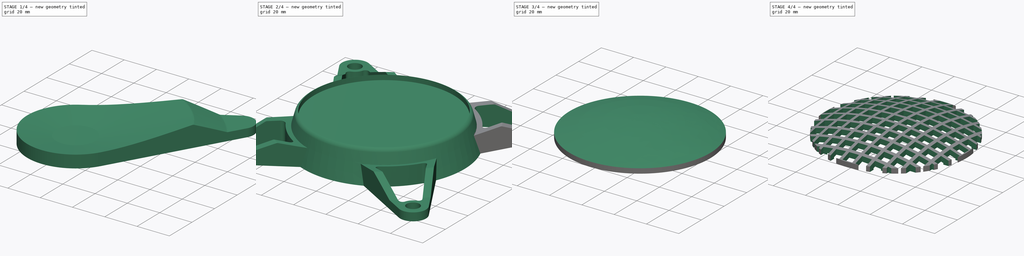
[diagram: build sequence overview — one tinted view per stage of 4, left to right]
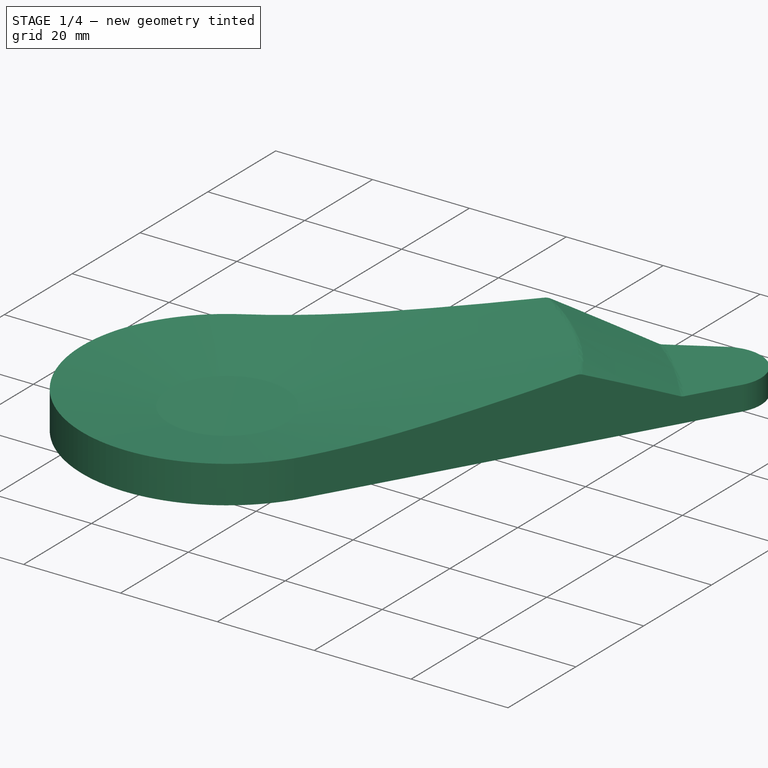
[diagram: stage 1 of 4 — iso view after this stage's code; geometry added in this stage tinted green]
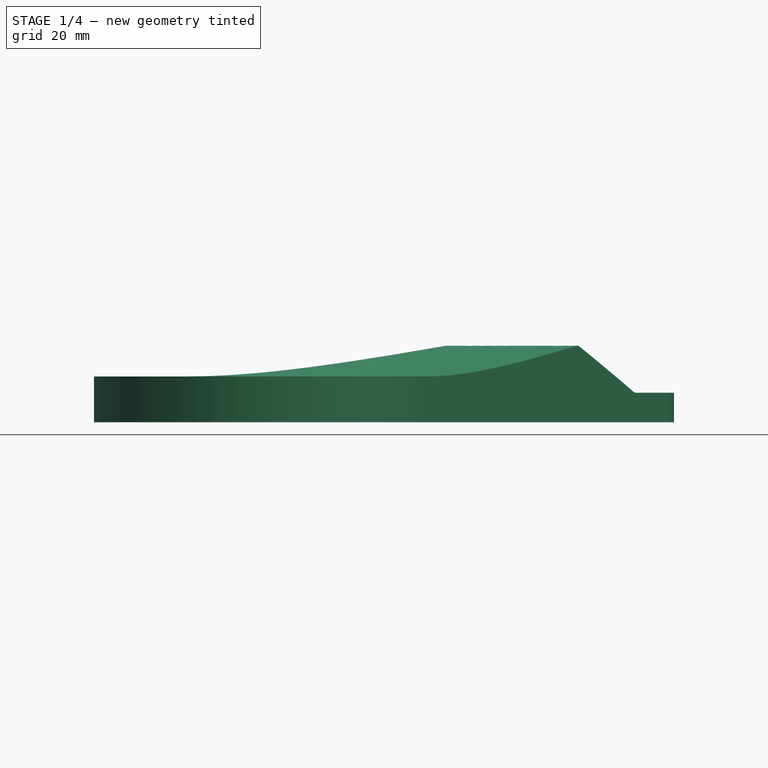
[diagram: stage 1 of 4 — front view after this stage's code; geometry added in this stage tinted green]
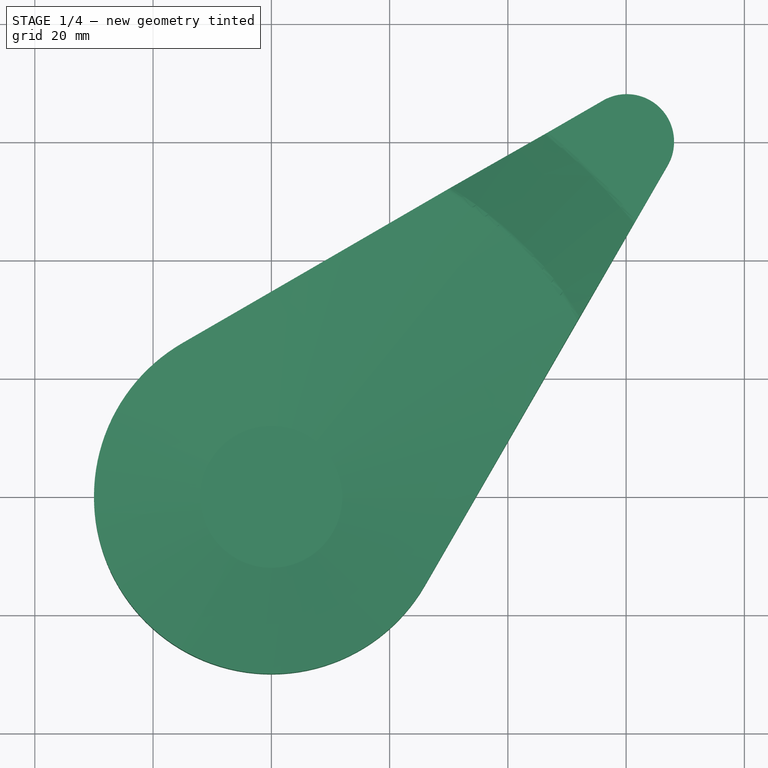
[diagram: stage 1 of 4 — top view after this stage's code; geometry added in this stage tinted green]
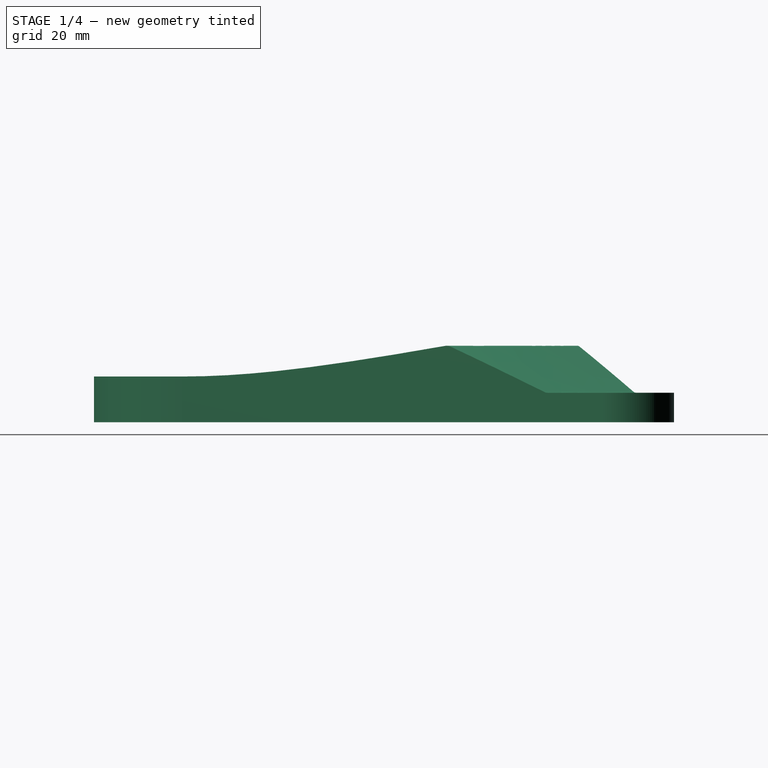
[diagram: stage 1 of 4 — right view after this stage's code; geometry added in this stage tinted green]
FCSTD DOCUMENT  (FreeCAD 1.0R39319 (Git))
Label: Model
License: All rights reserved
LicenseURL: https://en.wikipedia.org/wiki/All_rights_reserved
objects: Sketcher::SketchObject×7, PartDesign::Pocket×3, PartDesign::PolarPattern×2, PartDesign::Revolution×2, PartDesign::Body×2, PartDesign::LinearPattern×2, PartDesign::Pad×1, PartDesign::Groove×1, PartDesign::Fillet×1, PartDesign::SubShapeBinder×1, PartDesign::MultiTransform×1
note: 51 computed .brp shape members not serialized (recipe doc carries the construction recipe); baked Part::Feature solids carry a one-line shape summary decoded from their .brp

FEATURE [Sketcher::SketchObject] Sketch
  ArcFitTolerance = 1e-06
  AttachmentSupport = -> [XY_Plane]
  FullyConstrained = true
  MakeInternals = false
  MapMode = 5
  sketch-geometry (5):
    g0: ArcOfCircle CenterX=0 CenterY=0 CenterZ=0 NormalX=0 NormalY=0 NormalZ=1 AngleXU=0 Radius=29.9996 StartAngle=2.0944 EndAngle=5.75959
    g1: ArcOfCircle CenterX=60.1041 CenterY=60.1041 CenterZ=0 NormalX=0 NormalY=0 NormalZ=1 AngleXU=0 Radius=8 StartAngle=5.75959 EndAngle=8.37758
    g2: LineSegment StartX=-14.9998 StartY=25.9804 StartZ=0 EndX=56.1041 EndY=67.0323 EndZ=0
    g3: LineSegment StartX=25.9804 StartY=-14.9998 StartZ=0 EndX=67.0323 EndY=56.1041 EndZ=0
    g4: LineSegment [constr] StartX=60.1041 StartY=60.1041 StartZ=0 EndX=0 EndY=0 EndZ=0
  constraints (11):
    c: Tangent(g0,g2) = 1.5708
    c: Tangent(g0,g3) = -1.5708
    c: Tangent(g1,g2) = 1.5708
    c: Tangent(g1,g3) = -1.5708
    c: Coincident(g0,g-1)
    c: Coincident(g4,g1)
    c: Coincident(g4,g0)
    c: Radius(g1) = 8
    c: Angle(g2,g3) = 0.523599
    c: Distance(g4,g4) = 85
    c: Angle(g-1,g4) = 0.785398
FEATURE [PartDesign::Pad] Pad
  Direction = (0,0,1)
  Length = 17
  Length2 = 10
  Profile = -> Sketch
  ReferenceAxis = -> Sketch [N_Axis]
  Refine = true
  Suppressed = false
  Type = 0
FEATURE [Sketcher::SketchObject] Sketch001
  ArcFitTolerance = 1e-06
  AttachmentOffset = pos=(0,0,0) rot=(0,1,0;0.785398rad)
  AttachmentSupport = -> [XZ_Plane]
  ExternalGeometry = -> [Pad]
  FullyConstrained = true
  MakeInternals = false
  MapMode = 5
  Placement = pos=(0,0,0) rot=(0.862856,0.357407,0.357407;1.71777rad)
  sketch-geometry (13):
    g0: LineSegment StartX=130.46 StartY=0 StartZ=0 EndX=150.46 EndY=0 EndZ=0
    g1: LineSegment StartX=150.46 StartY=0 StartZ=0 EndX=150.46 EndY=20 EndZ=0
    g2: LineSegment StartX=150.46 StartY=20 StartZ=0 EndX=0 EndY=20 EndZ=0
    g3: LineSegment StartX=0 StartY=20 StartZ=0 EndX=0 EndY=4.56382 EndZ=0
    g4: LineSegment StartX=0 StartY=4.56382 StartZ=0 EndX=12 EndY=4.56382 EndZ=0
    g5: LineSegment StartX=12 StartY=4.56382 StartZ=0 EndX=59.3782 EndY=12.9179 EndZ=0
    g6: LineSegment StartX=60.2726 StartY=12.8001 StartZ=0 EndX=76.6986 EndY=5.14054 EndZ=0
    g7: LineSegment StartX=77.3325 StartY=5 StartZ=0 EndX=130.46 EndY=5 EndZ=0
    g8: LineSegment StartX=130.46 StartY=5 StartZ=0 EndX=130.46 EndY=0 EndZ=0
    g9: ArcOfCircle CenterX=59.6387 CenterY=11.4407 CenterZ=0 NormalX=0 NormalY=0 NormalZ=1 AngleXU=0 Radius=1.5 StartAngle=1.13446 EndAngle=1.74533
    g10: GeomPoint [constr] X=59.8439 Y=13 Z=0
    g11: ArcOfCircle CenterX=77.3325 CenterY=6.5 CenterZ=0 NormalX=0 NormalY=0 NormalZ=1 AngleXU=0 Radius=1.5 StartAngle=4.27606 EndAngle=4.71239
    g12: GeomPoint [constr] X=77 Y=5 Z=0
  constraints (35):
    c: PointOnObject(g0,g-1)
    c: Horizontal(g0)
    c: Coincident(g0,g1)
    c: Vertical(g1)
    c: Coincident(g1,g2)
    c: Horizontal(g2)
    c: Coincident(g2,g3)
    c: Vertical(g3)
    c: Coincident(g3,g4)
    c: Horizontal(g4)
    c: Coincident(g4,g5)
    c: Horizontal(g7)
    c: Coincident(g7,g8)
    c: Coincident(g8,g0)
    c: PointOnObject(g10,g5)
    c: PointOnObject(g10,g6)
    c: Tangent(g5,g9) = 1.5708
    c: Tangent(g6,g9) = 1.5708
    c: PointOnObject(g12,g6)
    c: PointOnObject(g12,g7)
    c: Tangent(g6,g11) = -1.5708
    c: Tangent(g7,g11) = -1.5708
    c: Equal(g9,g11)
    c: Radius(g9) = 1.5
    c: Angle(g6,g-1) = 0.436332
    c: Angle(g5,g6) = 2.53073
    c: Vertical(g8)
    c: DistanceX(g12,g-4) = 16
    c: DistanceY(g8,g8) = 5
    c: Distance(g10,g-1) = 13
    c: DistanceX(g0,g0) = 20
    c: DistanceY(g1,g1) = 20
    c: DistanceX(g2,g2) = 150.46
    c: PointOnObject(g3,g-2)
    c: DistanceX(g4,g4) = 12
FEATURE [PartDesign::Groove] Groove
  Angle = 360
  Angle2 = 60
  Axis = (0,2e-16,1)
  Base = (0,0,0)
  BaseFeature = -> Pad
  Profile = -> Sketch001
  ReferenceAxis = -> Sketch001 [V_Axis]
  Refine = true
  Suppressed = false
  Type = 0
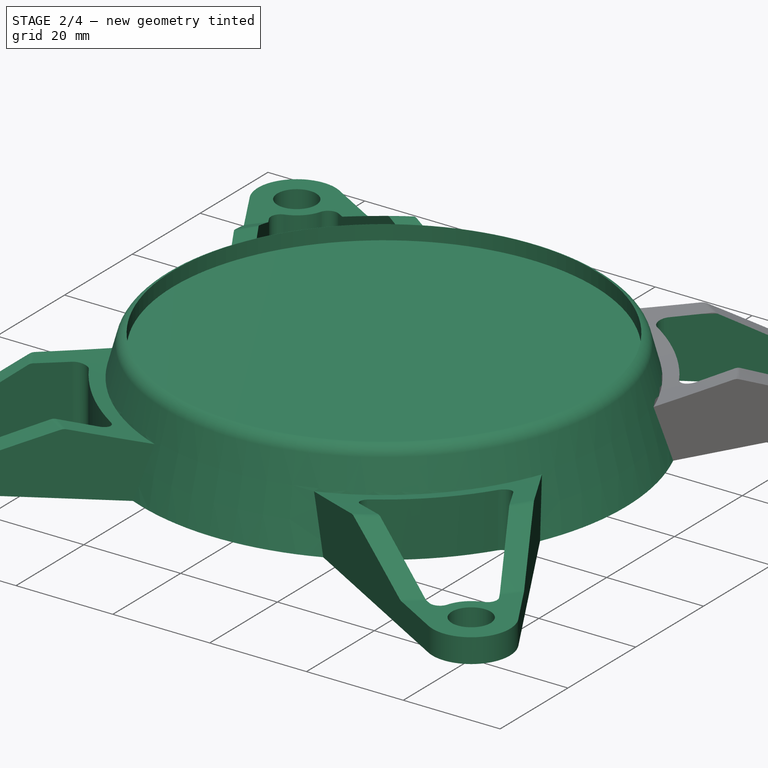
[diagram: stage 2 of 4 — iso view after this stage's code; geometry added in this stage tinted green]
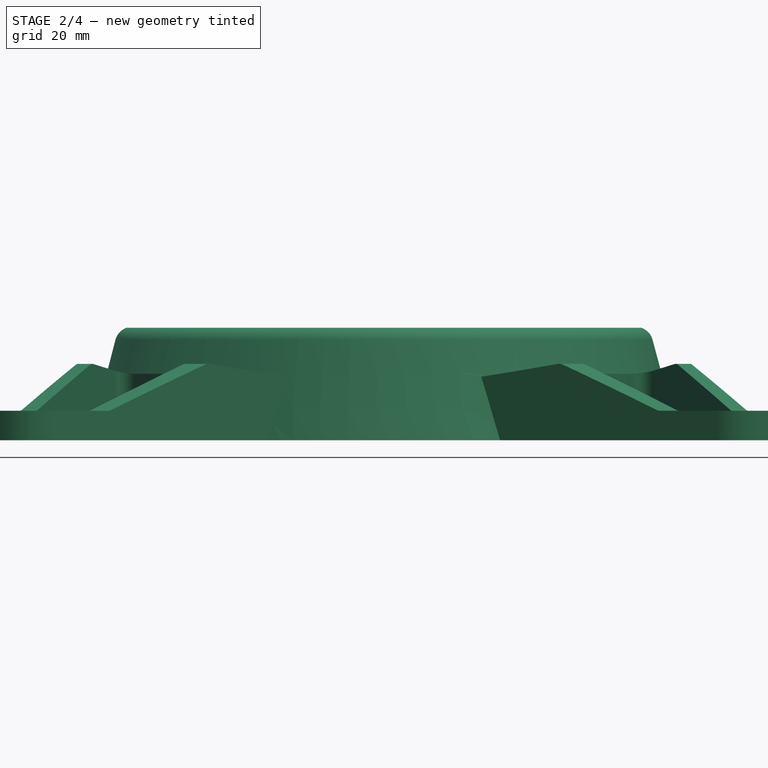
[diagram: stage 2 of 4 — front view after this stage's code; geometry added in this stage tinted green]
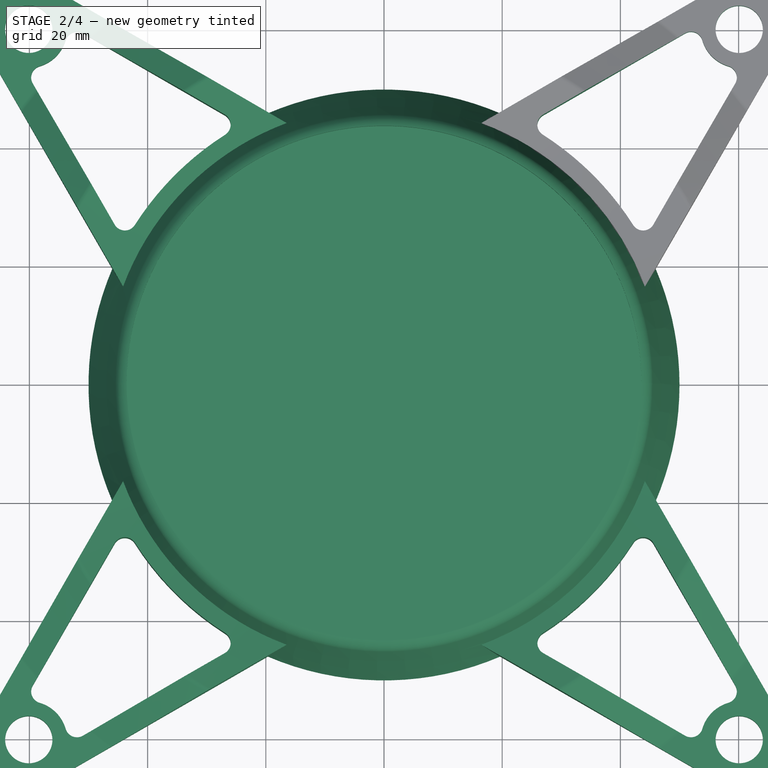
[diagram: stage 2 of 4 — top view after this stage's code; geometry added in this stage tinted green]
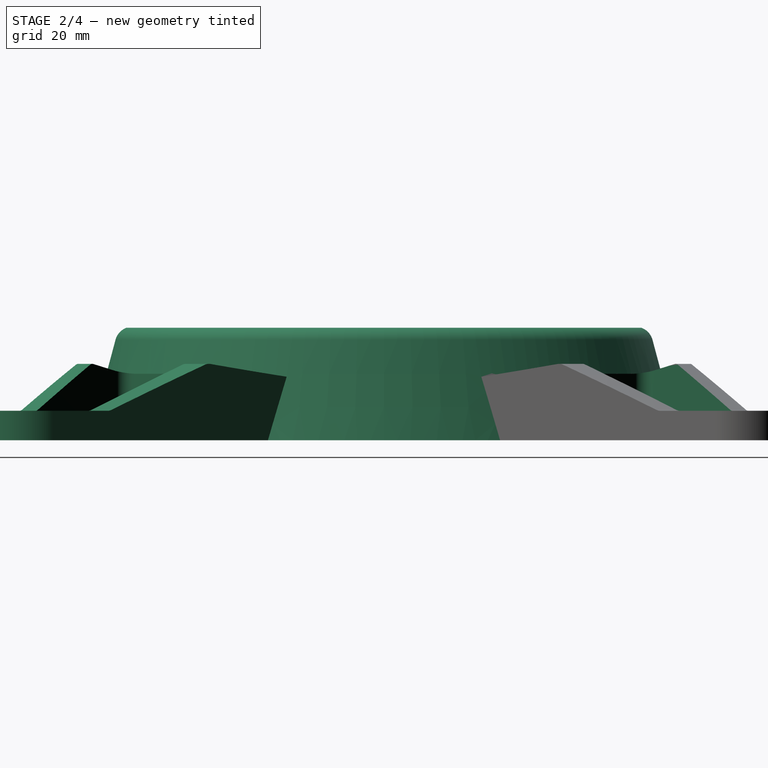
[diagram: stage 2 of 4 — right view after this stage's code; geometry added in this stage tinted green]
FEATURE [Sketcher::SketchObject] Sketch002
  ArcFitTolerance = 1e-06
  AttachmentSupport = -> [XY_Plane]
  ExternalGeometry = -> [Groove]
  FullyConstrained = true
  MakeInternals = false
  MapMode = 5
  sketch-geometry (9):
    g0: Circle CenterX=60.1041 CenterY=60.1041 CenterZ=0 NormalX=0 NormalY=0 NormalZ=1 AngleXU=0 Radius=4
    g1: LineSegment StartX=26.9503 StartY=45.5816 StartZ=0 EndX=50.9495 EndY=59.4375 EndZ=0
    g2: LineSegment StartX=59.4375 StartY=50.9495 StartZ=0 EndX=45.5816 EndY=26.9503 EndZ=0
    g3: ArcOfCircle CenterX=60.1041 CenterY=60.1041 CenterZ=0 NormalX=0 NormalY=0 NormalZ=1 AngleXU=0 Radius=6.5 StartAngle=3.42767 EndAngle=4.42631
    g4: ArcOfCircle CenterX=0 CenterY=0 CenterZ=0 NormalX=0 NormalY=0 NormalZ=1 AngleXU=0 Radius=50 StartAngle=0.567477 EndAngle=1.00332
    g5: ArcOfCircle CenterX=51.9495 CenterY=57.7054 CenterZ=0 NormalX=0 NormalY=0 NormalZ=1 AngleXU=0 Radius=2 StartAngle=0.286078 EndAngle=2.0944
    g6: ArcOfCircle CenterX=57.7054 CenterY=51.9495 CenterZ=0 NormalX=0 NormalY=0 NormalZ=1 AngleXU=0 Radius=2 StartAngle=5.75959 EndAngle=7.5679
    g7: ArcOfCircle CenterX=43.8495 CenterY=27.9503 CenterZ=0 NormalX=0 NormalY=0 NormalZ=1 AngleXU=0 Radius=2 StartAngle=3.70907 EndAngle=5.75959
    g8: ArcOfCircle CenterX=27.9503 CenterY=43.8495 CenterZ=0 NormalX=0 NormalY=0 NormalZ=1 AngleXU=0 Radius=2 StartAngle=2.0944 EndAngle=4.14491
  constraints (22):
    c: Diameter(g0) = 8
    c: Coincident(g0,g-3)
    c: Parallel(g1,g-4)
    c: Parallel(g2,g-5)
    c: Coincident(g3,g0)
    c: Coincident(g4,g-1)
    c: Tangent(g1,g5) = 1.5708
    c: Tangent(g3,g5) = 1.5708
    c: Tangent(g3,g6) = 1.5708
    c: Tangent(g2,g6) = 1.5708
    c: Tangent(g2,g7) = 1.5708
    c: Tangent(g4,g7) = 1.5708
    c: Tangent(g4,g8) = 1.5708
    c: Tangent(g1,g8) = 1.5708
    c: Equal(g8,g7)
    c: Equal(g8,g6)
    c: Equal(g8,g5)
    c: Radius(g8) = 2
    c: Distance(g-4,g1) = 4
    c: Distance(g-5,g2) = 4
    c: Radius(g3) = 6.5
    c: Radius(g4) = 50
FEATURE [PartDesign::Pocket] Pocket
  BaseFeature = -> Groove
  Direction = (0,0,-1)
  Length = 5
  Length2 = 5
  Profile = -> Sketch002
  ReferenceAxis = -> Sketch002 [N_Axis]
  Refine = true
  Reversed = true
  Suppressed = false
  Type = 1
FEATURE [Sketcher::SketchObject] Sketch003
  ArcFitTolerance = 1e-06
  AttachmentSupport = -> [XZ_Plane]
  FullyConstrained = true
  MakeInternals = false
  MapMode = 5
  Placement = pos=(0,0,0) rot=(1,0,0;1.5708rad)
  sketch-geometry (7):
    g0: LineSegment StartX=0 StartY=16.0509 StartZ=0 EndX=0 EndY=0 EndZ=0
    g1: LineSegment StartX=0 StartY=0 StartZ=0 EndX=50 EndY=0 EndZ=0
    g2: LineSegment StartX=50 StartY=0 StartZ=0 EndX=45.4449 EndY=17 EndZ=0
    g3: ArcOfCircle CenterX=42.5471 CenterY=16.2235 CenterZ=0 NormalX=0 NormalY=0 NormalZ=1 AngleXU=0 Radius=3 StartAngle=0.261799 EndAngle=1.22994
    g4: LineSegment StartX=43.55 StartY=19.0509 StartZ=0 EndX=43.55 EndY=16.0509 EndZ=0
    g5: LineSegment StartX=43.55 StartY=16.0509 StartZ=0 EndX=0 EndY=16.0509 EndZ=0
    g6: ArcOfCircle [constr] CenterX=0.0916563 CenterY=-103.47 CenterZ=0 NormalX=0 NormalY=0 NormalZ=1 AngleXU=0 Radius=130 StartAngle=1.22994 EndAngle=1.5715
  constraints (20):
    c: PointOnObject(g0,g-2)
    c: Coincident(g0,g-1)
    c: Coincident(g0,g1)
    c: PointOnObject(g1,g-1)
    c: Coincident(g1,g2)
    c: Tangent(g2,g3) = -1.5708
    c: Coincident(g3,g4)
    c: Vertical(g4)
    c: Coincident(g4,g5)
    c: Coincident(g5,g0)
    c: Horizontal(g5)
    c: Angle(g2,g1) = 1.309
    c: Radius(g3) = 3
    c: DistanceX(g1,g1) = 50
    c: DistanceY(g-1,g2) = 17
    c: Tangent(g6,g3) = -1.5708
    c: PointOnObject(g6,g-2)
    c: DistanceY(g-1,g6) = 26.53
    c: Radius(g6) = 130
    c: Distance(g4,g4) = 3
FEATURE [PartDesign::PolarPattern] PolarPattern
  Angle = 360
  Axis = -> Sketch002 [N_Axis]
  BaseFeature = -> Pocket
  Mode = 0
  Occurrences = 4
  Offset = 120
  Originals = -> [Pocket,Groove,Pad]
  Refine = true
  Suppressed = false
  TransformMode = 1
FEATURE [PartDesign::Revolution] Revolution
  Angle = 360
  Angle2 = 60
  Axis = (0,2e-16,1)
  Base = (0,0,0)
  BaseFeature = -> PolarPattern
  Profile = -> Sketch003
  ReferenceAxis = -> Sketch003 [V_Axis]
  Refine = true
  Reversed = true
  Suppressed = false
  Type = 0
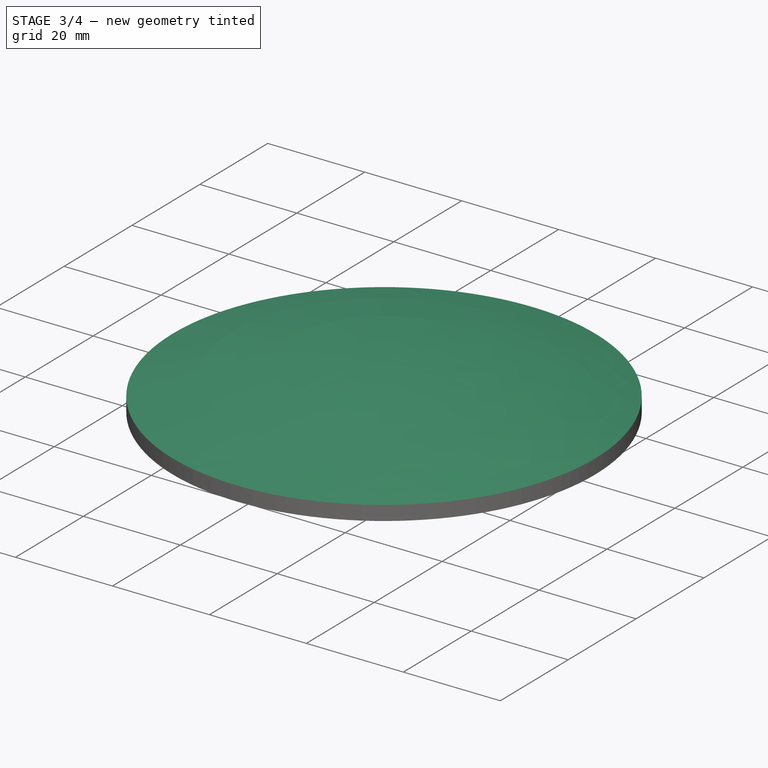
[diagram: stage 3 of 4 — iso view after this stage's code; geometry added in this stage tinted green]
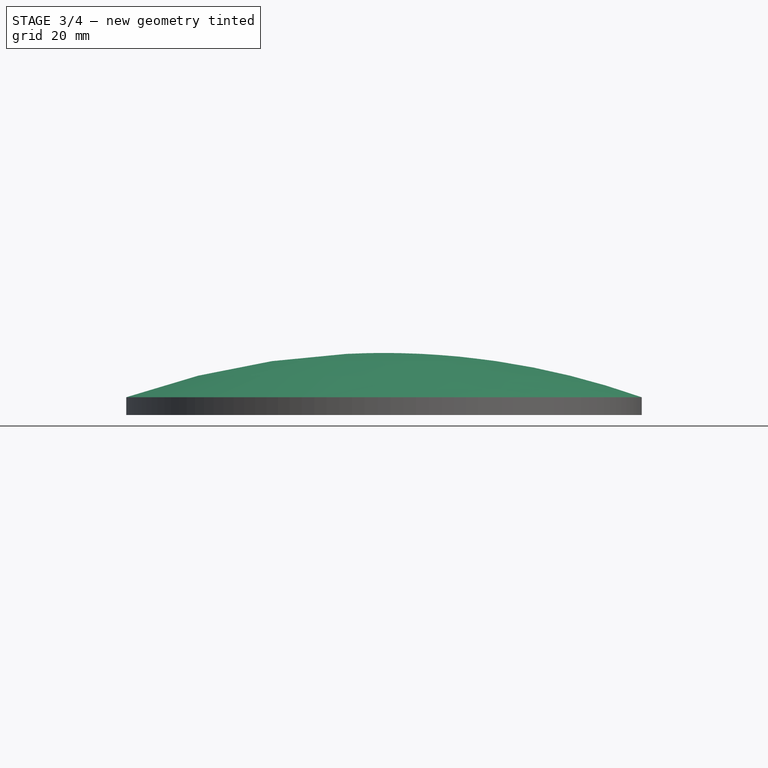
[diagram: stage 3 of 4 — front view after this stage's code; geometry added in this stage tinted green]
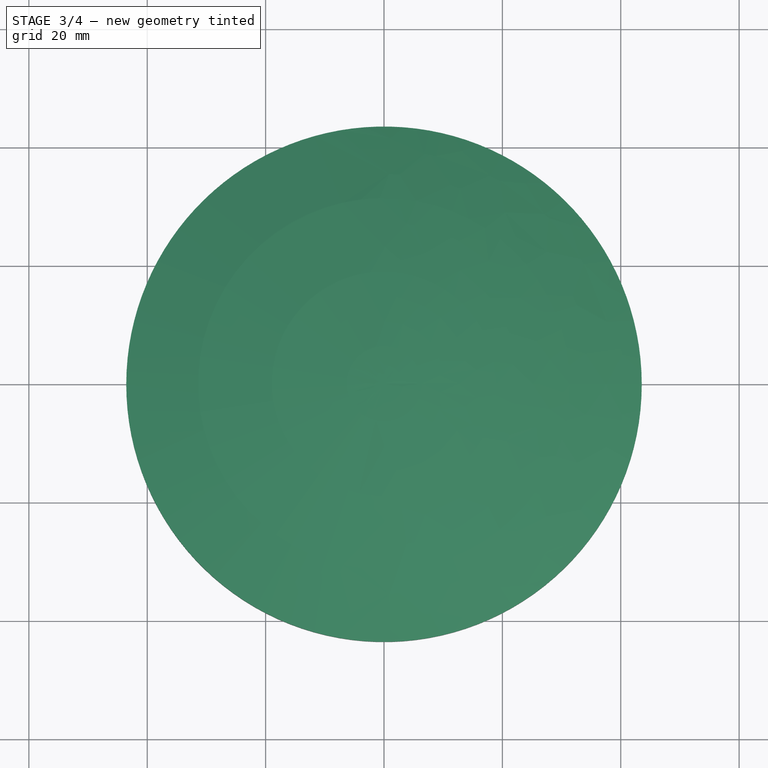
[diagram: stage 3 of 4 — top view after this stage's code; geometry added in this stage tinted green]
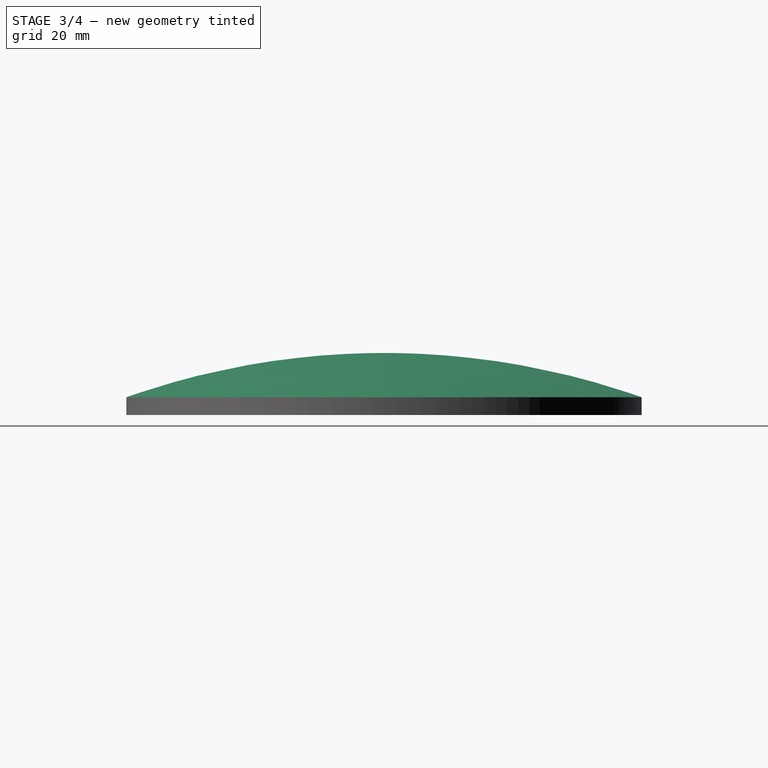
[diagram: stage 3 of 4 — right view after this stage's code; geometry added in this stage tinted green]
FEATURE [PartDesign::Fillet] Fillet
  Base = -> Revolution [Edge4,Edge222,Edge3,Edge7,Edge15,Edge13,Edge29,Edge220,Edge263,Edge21,Edge236,Edge245,Edge103,Edge87,Edge115,Edge128,Edge165,Edge152,Edge159,Edge114,Edge120,Edge118,Edge129,Edge161,Edge155,Edge97,Edge95,Edge81,Edge89,Edge77,Edge101,Edge197,Edge143,Edge134,Edge136,Edge126,Edge122,Edge145,Edge229,Edge225,+17 more]
  BaseFeature = -> Revolution
  Radius = 1
  Refine = true
  SupportTransform = false
  Suppressed = false
  UseAllEdges = false
FEATURE [Sketcher::SketchObject] Sketch004
  ArcFitTolerance = 1e-06
  AttachmentSupport = -> [Fillet]
  ExternalGeometry = -> [Fillet]
  FullyConstrained = true
  MakeInternals = false
  MapMode = 5
  Placement = pos=(0,3.5e-15,16.0509) rot=(0,0,1;0rad)
  sketch-geometry (1):
    g0: Circle CenterX=0 CenterY=0 CenterZ=0 NormalX=0 NormalY=0 NormalZ=1 AngleXU=0 Radius=40.55
  constraints (2):
    c: Coincident(g0,g-1)
    c: Distance(g0,g-3) = 3
FEATURE [PartDesign::Pocket] Pocket001
  BaseFeature = -> Fillet
  Direction = (0,0,-1)
  Length = 5
  Length2 = 5
  Profile = -> Sketch004
  ReferenceAxis = -> Sketch004 [N_Axis]
  Refine = true
  Suppressed = false
  Type = 1
FEATURE [PartDesign::Body] Body  label="base"
  AllowCompound = false
  Group = -> [Sketch,Pad,Sketch001,Groove,Sketch002,Pocket,Sketch003,PolarPattern,Revolution,Fillet,Sketch004,Pocket001]
  Origin = -> Origin
  Tip = -> Pocket001
FEATURE [PartDesign::SubShapeBinder] Binder
  BindCopyOnChange = 0
  BindMode = 0
  ClaimChildren = false
  Context = -> Body001 [Binder.]
  Fuse = false
  MakeFace = true
  OffsetFill = false
  OffsetIntersection = false
  OffsetJoinType = 0
  OffsetOpenResult = false
  PartialLoad = false
  Refine = true
  Relative = true
  Support = -> [Body]
  _Version = 2
FEATURE [Sketcher::SketchObject] Sketch005
  ArcFitTolerance = 1e-06
  AttachmentSupport = -> [XZ_Plane001]
  ExternalGeometry = -> [Binder]
  FullyConstrained = true
  MakeInternals = false
  MapMode = 5
  Placement = pos=(0,0,0) rot=(1,0,0;1.5708rad)
  sketch-geometry (6):
    g0: LineSegment StartX=40.55 StartY=16.0509 StartZ=0 EndX=43.55 EndY=16.0509 EndZ=0
    g1: LineSegment StartX=43.55 StartY=16.0509 StartZ=0 EndX=43.55 EndY=19.0509 EndZ=0
    g2: ArcOfCircle CenterX=0.0916563 CenterY=-103.47 CenterZ=0 NormalX=0 NormalY=0 NormalZ=1 AngleXU=0 Radius=130 StartAngle=1.22994 EndAngle=1.5715
    g3: ArcOfCircle CenterX=0.0916563 CenterY=-103.47 CenterZ=0 NormalX=0 NormalY=0 NormalZ=1 AngleXU=0 Radius=127 StartAngle=1.24658 EndAngle=1.57152
    g4: LineSegment StartX=40.55 StartY=16.0509 StartZ=0 EndX=40.55 EndY=16.9133 EndZ=0
    g5: LineSegment StartX=4.4e-15 StartY=23.53 StartZ=0 EndX=0 EndY=26.53 EndZ=0
  constraints (16):
    c: Coincident(g-5,g0)
    c: Coincident(g0,g-3)
    c: Coincident(g0,g1)
    c: Coincident(g1,g-4)
    c: Coincident(g2,g1)
    c: PointOnObject(g2,g-2)
    c: PointOnObject(g3,g-2)
    c: Radius(g2) = 130
    c: Distance(g3,g2) = 3
    c: DistanceY(g-1,g2) = 26.53
    c: Coincident(g3,g2)
    c: Vertical(g3,g0)
    c: Coincident(g4,g0)
    c: Coincident(g4,g3)
    c: Coincident(g5,g3)
    c: Coincident(g5,g2)
FEATURE [PartDesign::Revolution] Revolution001
  Angle = 360
  Angle2 = 60
  Axis = (0,2e-16,1)
  Base = (0,0,0)
  Placement = pos=(0,0,0) rot=(1,0,0;1.5708rad)
  Profile = -> Sketch005
  ReferenceAxis = -> Sketch005 [V_Axis]
  Refine = true
  Reversed = true
  Suppressed = false
  Type = 0
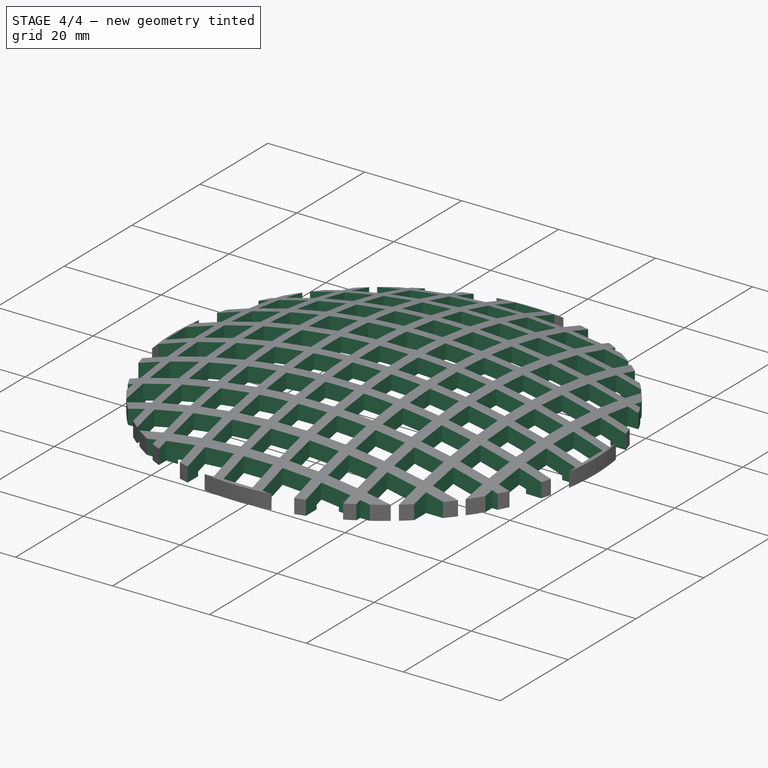
[diagram: stage 4 of 4 — iso view after this stage's code; geometry added in this stage tinted green]
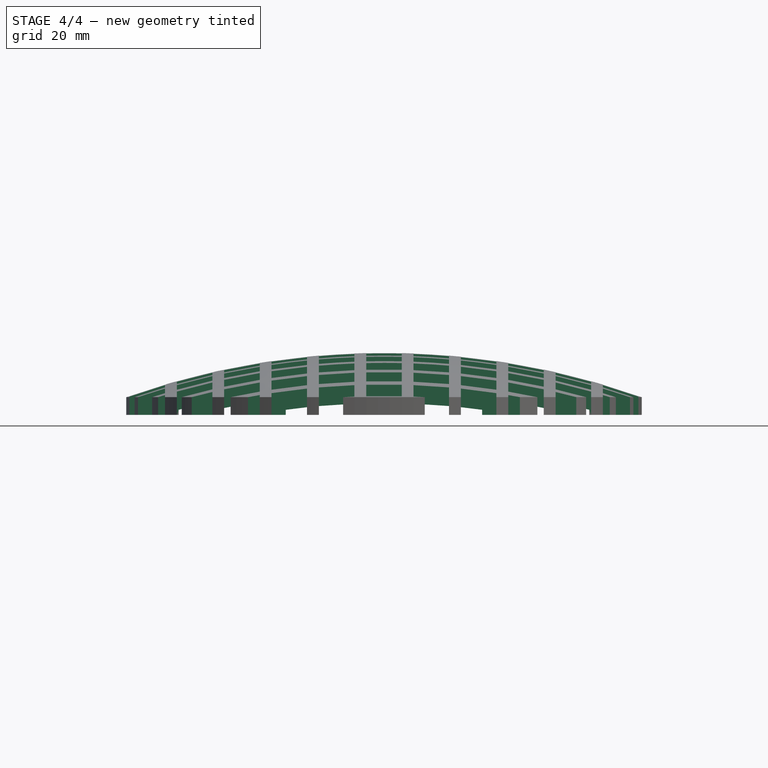
[diagram: stage 4 of 4 — front view after this stage's code; geometry added in this stage tinted green]
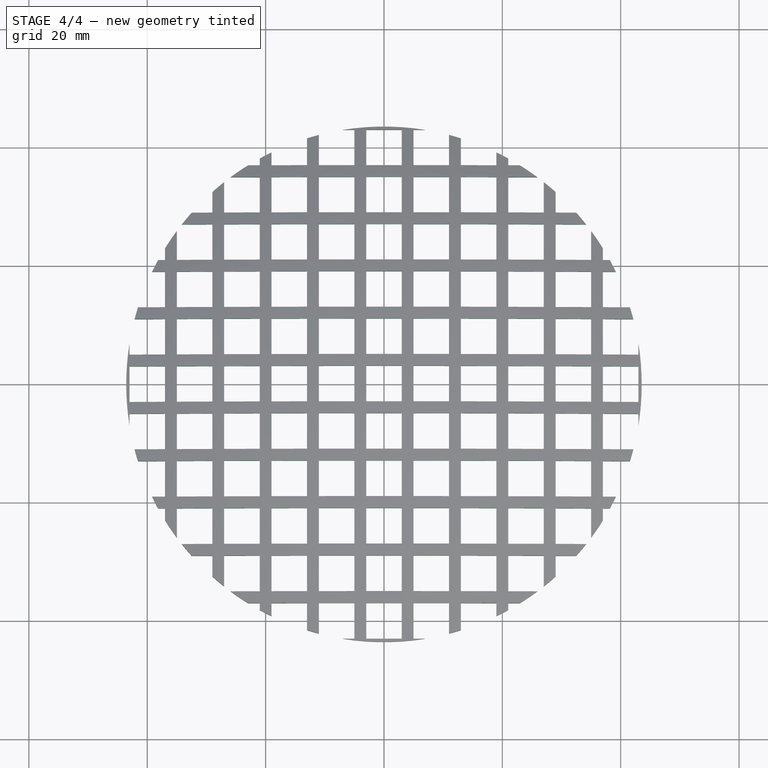
[diagram: stage 4 of 4 — top view after this stage's code; geometry added in this stage tinted green]
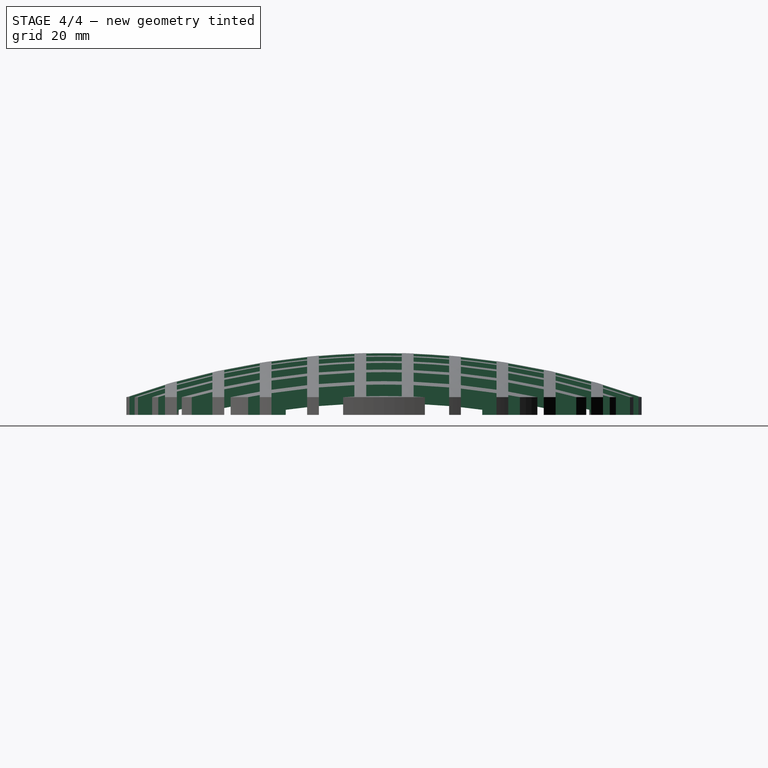
[diagram: stage 4 of 4 — right view after this stage's code; geometry added in this stage tinted green]
FEATURE [Sketcher::SketchObject] Sketch006
  ArcFitTolerance = 1e-06
  AttachmentSupport = -> [XY_Plane001]
  FullyConstrained = true
  MakeInternals = false
  MapMode = 5
  sketch-geometry (5):
    g0: LineSegment StartX=-3 StartY=-3 StartZ=0 EndX=3 EndY=-3 EndZ=0
    g1: LineSegment StartX=3 StartY=-3 StartZ=0 EndX=3 EndY=3 EndZ=0
    g2: LineSegment StartX=3 StartY=3 StartZ=0 EndX=-3 EndY=3 EndZ=0
    g3: LineSegment StartX=-3 StartY=3 StartZ=0 EndX=-3 EndY=-3 EndZ=0
    g4: GeomPoint [constr] X=0 Y=0 Z=0
  constraints (12):
    c: Coincident(g0,g1)
    c: Coincident(g1,g2)
    c: Coincident(g2,g3)
    c: Coincident(g3,g0)
    c: Horizontal(g0)
    c: Horizontal(g2)
    c: Vertical(g1)
    c: Vertical(g3)
    c: Symmetric(g2,g0,g4)
    c: Distance(g1,g3) = 6
    c: Distance(g0,g2) = 6
    c: Coincident(g4,g-1)
FEATURE [PartDesign::Pocket] Pocket002
  BaseFeature = -> Revolution001
  Direction = (0,0,-1)
  Length = 5
  Length2 = 5
  Placement = pos=(0,0,0) rot=(1,0,0;1.5708rad)
  Profile = -> Sketch006
  ReferenceAxis = -> Sketch006 [N_Axis]
  Refine = true
  Reversed = true
  Suppressed = false
  Type = 1
FEATURE [PartDesign::LinearPattern] LinearPattern
  Direction = -> X_Axis001
  Length = 40
  Mode = 1
  Occurrences = 6
  Offset = 8
  Placement = pos=(0,0,0) rot=(1,0,0;1.5708rad)
  Refine = true
  Suppressed = false
  TransformMode = 0
FEATURE [PartDesign::LinearPattern] LinearPattern001
  Direction = -> Y_Axis001
  Length = 40
  Mode = 1
  Occurrences = 6
  Offset = 8
  Placement = pos=(0,0,0) rot=(1,0,0;1.5708rad)
  Refine = true
  Reversed = true
  Suppressed = false
  TransformMode = 0
FEATURE [PartDesign::PolarPattern] PolarPattern001
  Angle = 360
  Axis = -> Sketch006 [N_Axis]
  Mode = 0
  Occurrences = 4
  Offset = 120
  Placement = pos=(0,0,0) rot=(1,0,0;1.5708rad)
  Refine = true
  Suppressed = false
  TransformMode = 0
FEATURE [PartDesign::MultiTransform] MultiTransform
  BaseFeature = -> Pocket002
  Originals = -> [Pocket002]
  Placement = pos=(0,0,0) rot=(1,0,0;1.5708rad)
  Refine = true
  Suppressed = false
  TransformMode = 0
  Transformations = -> [LinearPattern,LinearPattern001,PolarPattern001]
FEATURE [PartDesign::Body] Body001  label="cover"
  AllowCompound = false
  Group = -> [Binder,Sketch005,Revolution001,Sketch006,Pocket002,MultiTransform,LinearPattern,LinearPattern001,PolarPattern001]
  Origin = -> Origin001
  Tip = -> MultiTransform
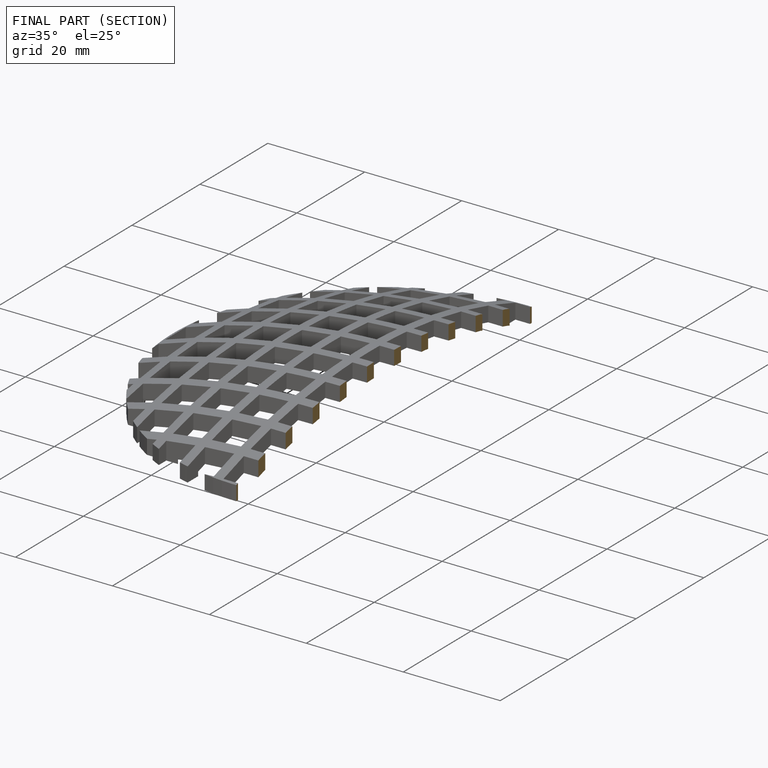
[diagram: finished part — half-section view (interior)]
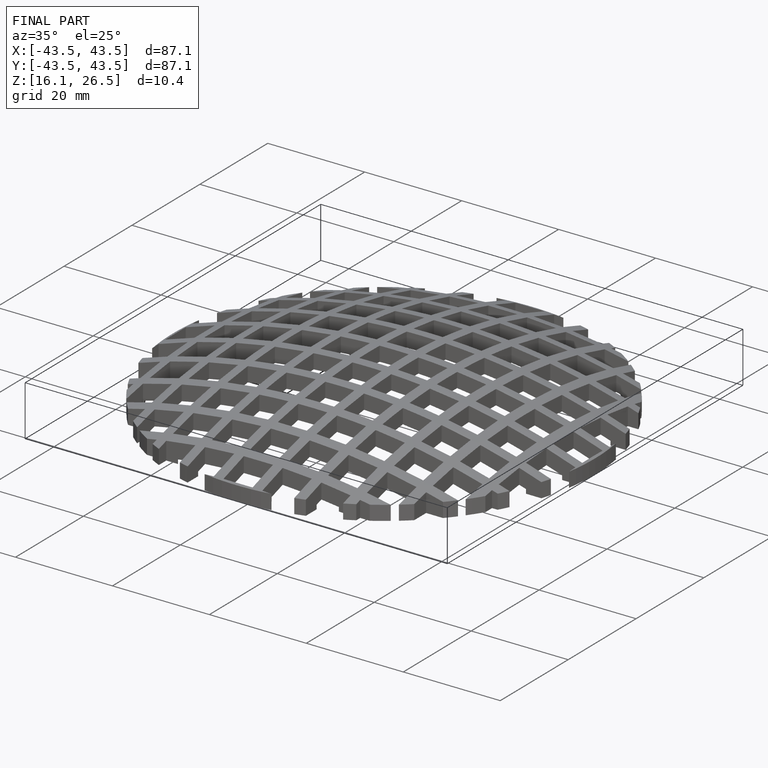
[diagram: finished part — iso view with bounding-box wireframe]
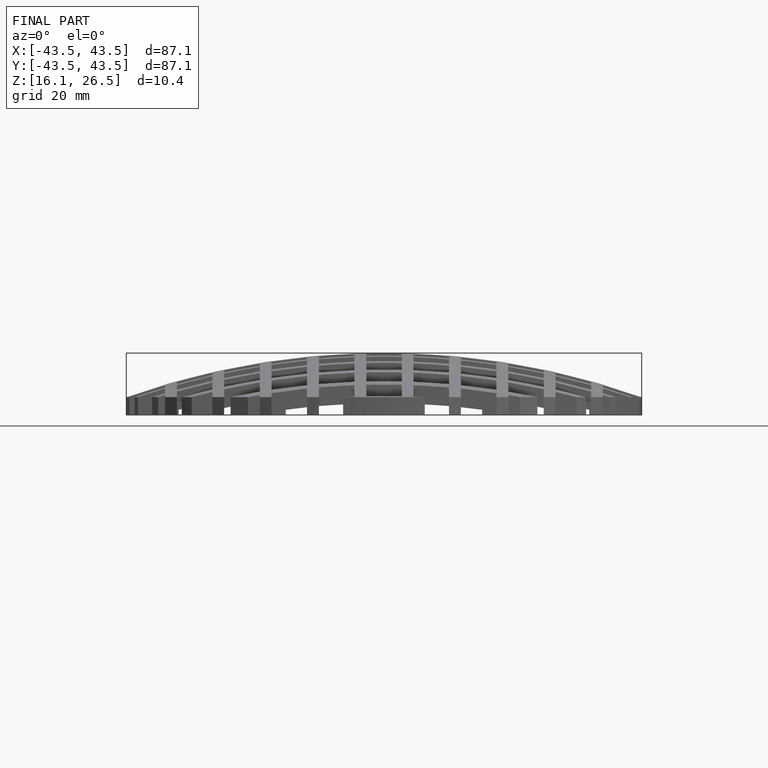
[diagram: finished part — front view with bounding-box wireframe]
